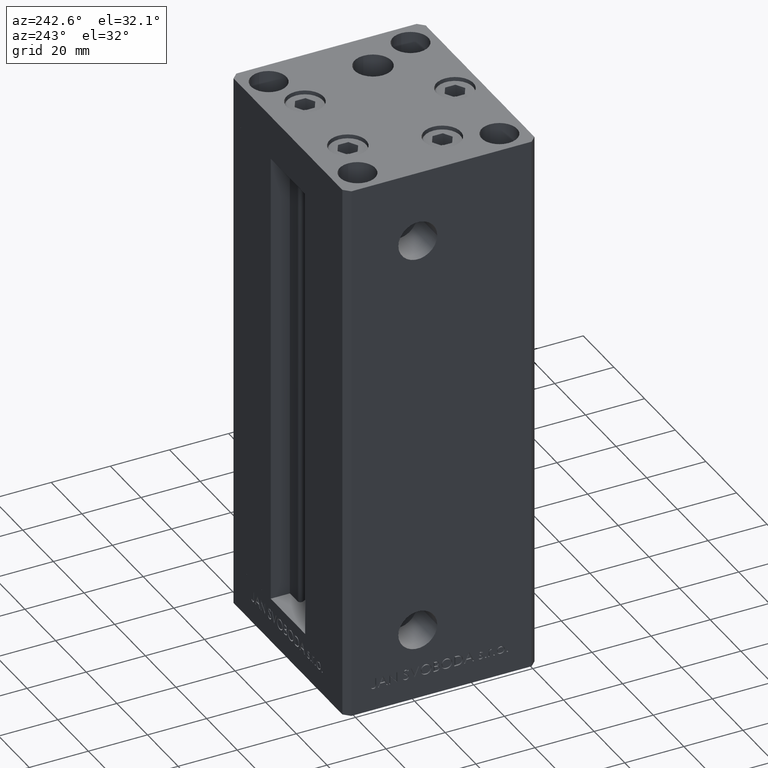
[diagram: clean part render]
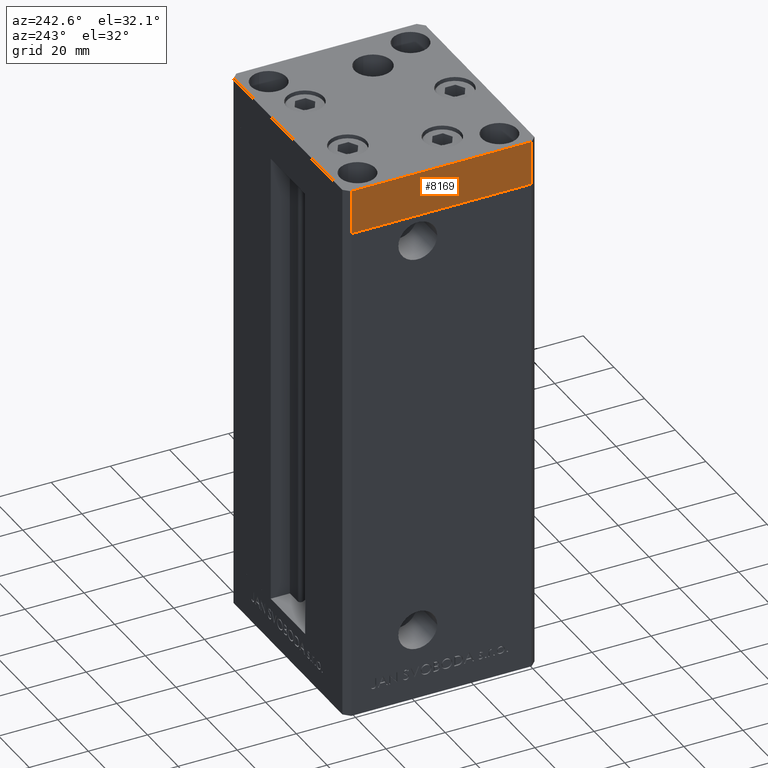
[diagram: same view with one face highlighted and labeled with its STEP entity id]
A machine part, auxiliary view. The second image highlights one B-rep face of the part: STEP entity #8169.
In plain terms, the highlighted planar face has unit normal (-1, -0, 0).
Its self-contained STEP definition (entity closure, byte-faithful):
#12 = VECTOR ( 'NONE', #39151, 1000.000000000000000 ) ;
#560 = ORIENTED_EDGE ( 'NONE', *, *, #37857, .T. ) ;
#720 = LINE ( 'NONE', #8738, #12 ) ;
#1217 = VECTOR ( 'NONE', #38161, 1000.000000000000000 ) ;
#1415 = LINE ( 'NONE', #5674, #1504 ) ;
#1504 = VECTOR ( 'NONE', #28546, 1000.000000000000000 ) ;
#2942 = VERTEX_POINT ( 'NONE', #17051 ) ;
#5674 = CARTESIAN_POINT ( 'NONE',  ( -37.50000000000001421, 30.49999999999998579, -15.00000000000000000 ) ) ;
#6924 = EDGE_CURVE ( 'NONE', #46299, #9471, #1415, .T. ) ;
#7877 = ORIENTED_EDGE ( 'NONE', *, *, #28061, .F. ) ;
#8169 = ADVANCED_FACE ( 'NONE', ( #39934 ), #28126, .T. ) ;
#8738 = CARTESIAN_POINT ( 'NONE',  ( -37.50000000000001421, 30.49999999999998579, -15.00000000000000000 ) ) ;
#9242 = DIRECTION ( 'NONE',  ( 0.000000000000000000, 0.000000000000000000, 1.000000000000000000 ) ) ;
#9471 = VERTEX_POINT ( 'NONE', #44589 ) ;
#9716 = LINE ( 'NONE', #20768, #23279 ) ;
#10246 = EDGE_CURVE ( 'NONE', #46299, #2942, #720, .T. ) ;
#12628 = CARTESIAN_POINT ( 'NONE',  ( -37.50000000000001421, 30.49999999999998579, -15.00000000000000000 ) ) ;
#16746 = EDGE_LOOP ( 'NONE', ( #7877, #20309, #30436, #560 ) ) ;
#16810 = CARTESIAN_POINT ( 'NONE',  ( -37.50000000000001421, 30.49999999999998579, -15.00000000000000000 ) ) ;
#17051 = CARTESIAN_POINT ( 'NONE',  ( -37.50000000000001421, 30.49999999999998579, 0.000000000000000000 ) ) ;
#20309 = ORIENTED_EDGE ( 'NONE', *, *, #10246, .F. ) ;
#20768 = CARTESIAN_POINT ( 'NONE',  ( -37.49999999999998579, -30.50000000000001421, -15.00000000000000000 ) ) ;
#23279 = VECTOR ( 'NONE', #9242, 1000.000000000000000 ) ;
#23706 = CARTESIAN_POINT ( 'NONE',  ( -37.49999999999998579, -30.50000000000001421, 0.000000000000000000 ) ) ;
#26337 = CARTESIAN_POINT ( 'NONE',  ( -37.50000000000001421, 30.49999999999998579, 0.000000000000000000 ) ) ;
#28061 = EDGE_CURVE ( 'NONE', #2942, #40309, #34389, .T. ) ;
#28126 = PLANE ( 'NONE',  #32837 ) ;
#28546 = DIRECTION ( 'NONE',  ( 4.550094363217855288E-16, -1.000000000000000000, 0.000000000000000000 ) ) ;
#30436 = ORIENTED_EDGE ( 'NONE', *, *, #6924, .T. ) ;
#32146 = DIRECTION ( 'NONE',  ( 4.550094363217855288E-16, -1.000000000000000000, 0.000000000000000000 ) ) ;
#32837 = AXIS2_PLACEMENT_3D ( 'NONE', #16810, #40180, #32146 ) ;
#34389 = LINE ( 'NONE', #26337, #1217 ) ;
#37857 = EDGE_CURVE ( 'NONE', #9471, #40309, #9716, .T. ) ;
#38161 = DIRECTION ( 'NONE',  ( 4.550094363217855288E-16, -1.000000000000000000, 0.000000000000000000 ) ) ;
#39151 = DIRECTION ( 'NONE',  ( 0.000000000000000000, 0.000000000000000000, 1.000000000000000000 ) ) ;
#39934 = FACE_OUTER_BOUND ( 'NONE', #16746, .T. ) ;
#40180 = DIRECTION ( 'NONE',  ( -1.000000000000000000, -4.550094363217855288E-16, 0.000000000000000000 ) ) ;
#40309 = VERTEX_POINT ( 'NONE', #23706 ) ;
#44589 = CARTESIAN_POINT ( 'NONE',  ( -37.49999999999998579, -30.50000000000001421, -15.00000000000000000 ) ) ;
#46299 = VERTEX_POINT ( 'NONE', #12628 ) ;